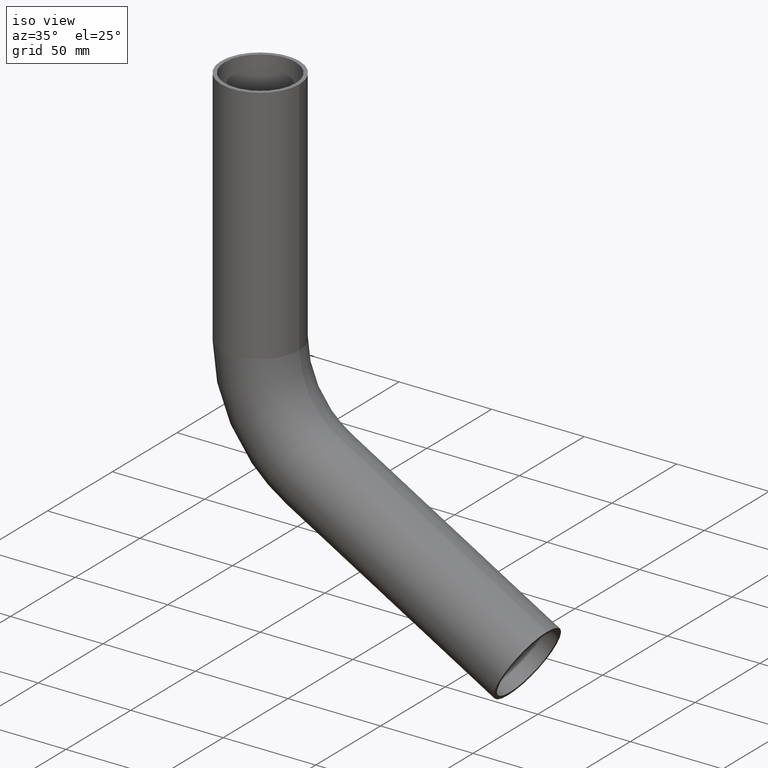
[diagram: clean part render]
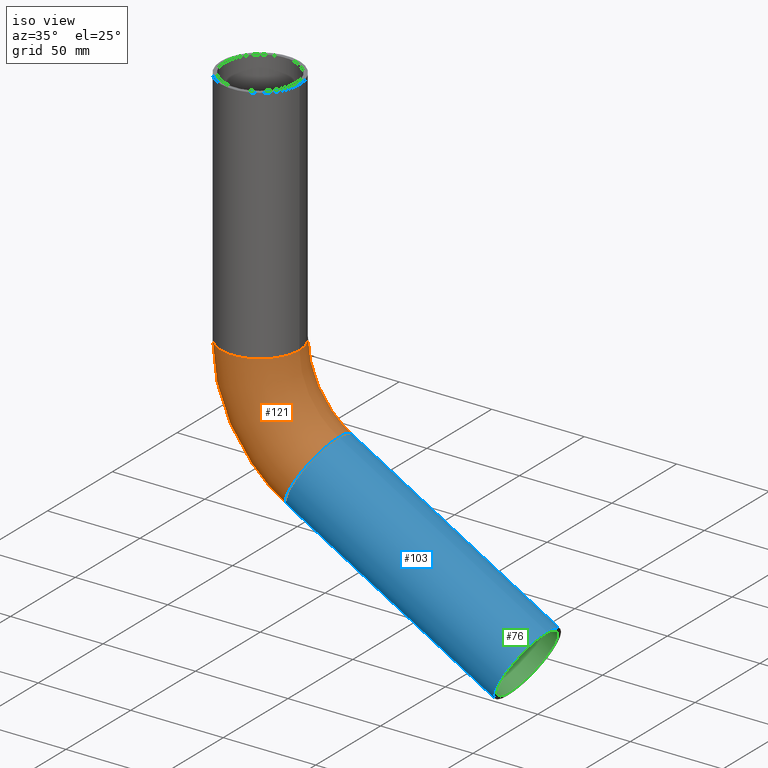
[diagram: same view with three faces highlighted in distinct colors, each labeled with its STEP entity id]
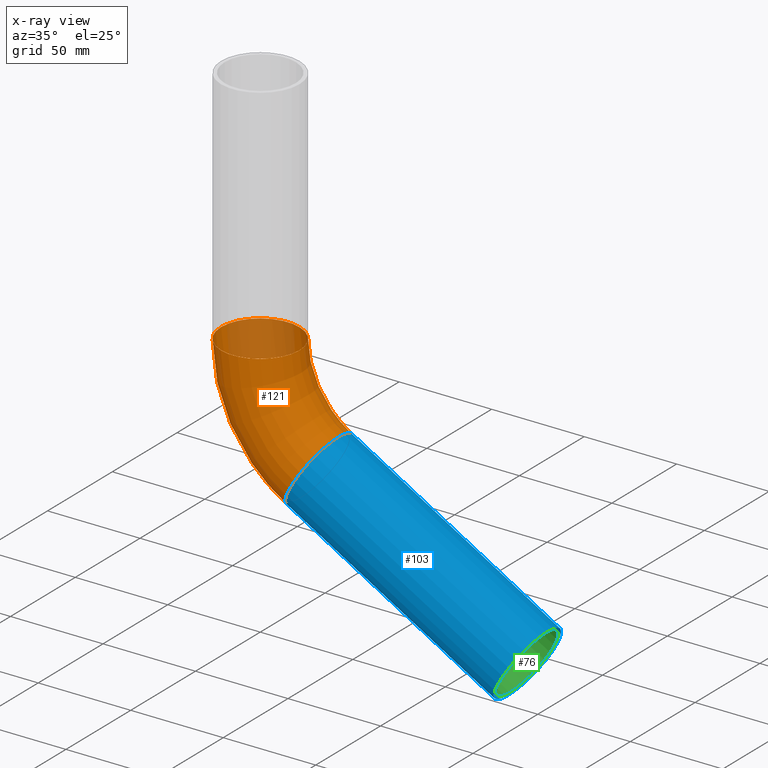
[diagram: x-ray of the same camera — body ghosted, the three highlighted faces saturated]
A machine part, iso view with three faces highlighted in distinct colors.
The next image is the same camera in x-ray (body ghosted, the three faces saturated) — at least one of them is partly hidden behind the body in this view.
Their STEP definitions:

[orange] entity #121 — the highlighted toroidal blend (fillet) surface has major radius 63.6 mm and minor (blend) radius 21.2 mm.
#121=ADVANCED_FACE('',(#193,#195),#197,.T.);
#193=FACE_OUTER_BOUND('',#194,.T.);
#194=EDGE_LOOP('',(#216));
#195=FACE_OUTER_BOUND('',#196,.T.);
#196=EDGE_LOOP('',(#217));
#197=TOROIDAL_SURFACE('',#198,63.5999999999999,21.2);
#198=AXIS2_PLACEMENT_3D('',#199,#200,#201);
#199=CARTESIAN_POINT('',(63.5999999999999,0.,-130.));
#200=DIRECTION('',(0.,-1.,0.));
#201=DIRECTION('',(-1.,0.,0.));
#216=ORIENTED_EDGE('',*,*,#224,.F.);
#217=ORIENTED_EDGE('',*,*,#225,.T.);
#224=EDGE_CURVE('',#238,#238,#239,.T.);
#225=EDGE_CURVE('',#240,#240,#241,.T.);
#238=VERTEX_POINT('',#272);
#239=CIRCLE('',#273,21.2);
#240=VERTEX_POINT('',#277);
#241=CIRCLE('',#278,21.2);
#272=CARTESIAN_POINT('',(42.3999999999999,0.,-166.71947712046));
#273=AXIS2_PLACEMENT_3D('',#274,#275,#276);
#274=CARTESIAN_POINT('',(31.7999999999999,0.,-185.07921568069));
#275=DIRECTION('',(0.866025403784438,-0.,-0.5));
#276=DIRECTION('',(0.5,-1.22464679914735E-016,0.866025403784438));
#277=CARTESIAN_POINT('',(21.2,-2.59625121419239E-015,-130.));
#278=AXIS2_PLACEMENT_3D('',#279,#280,#281);
#279=CARTESIAN_POINT('',(0.,0.,-130.));
#280=DIRECTION('',(0.,0.,-1.));
#281=DIRECTION('',(1.,0.,0.));

[blue] entity #103 — the highlighted cylindrical surface (bore or boss wall) has radius 21.2 mm, axis along (0.866, 0, -0.5).
#103=ADVANCED_FACE('',(#175,#177),#179,.T.);
#175=FACE_OUTER_BOUND('',#176,.T.);
#176=EDGE_LOOP('',(#212));
#177=FACE_OUTER_BOUND('',#178,.T.);
#178=EDGE_LOOP('',(#213));
#179=CYLINDRICAL_SURFACE('',#180,21.2);
#180=AXIS2_PLACEMENT_3D('',#181,#182,#183);
#181=CARTESIAN_POINT('',(31.7999999999999,0.,-185.07921568069));
#182=DIRECTION('',(0.866025403784439,0.,-0.5));
#183=DIRECTION('',(0.5,0.,0.866025403784439));
#212=ORIENTED_EDGE('',*,*,#222,.F.);
#213=ORIENTED_EDGE('',*,*,#224,.T.);
#222=EDGE_CURVE('',#234,#234,#235,.T.);
#224=EDGE_CURVE('',#238,#238,#239,.T.);
#234=VERTEX_POINT('',#262);
#235=CIRCLE('',#263,21.2);
#238=VERTEX_POINT('',#272);
#239=CIRCLE('',#273,21.2);
#262=CARTESIAN_POINT('',(154.983302491977,0.,-231.71947712046));
#263=AXIS2_PLACEMENT_3D('',#264,#265,#266);
#264=CARTESIAN_POINT('',(144.383302491977,0.,-250.07921568069));
#265=DIRECTION('',(0.866025403784438,0.,-0.5));
#266=DIRECTION('',(0.5,0.,0.866025403784438));
#272=CARTESIAN_POINT('',(42.3999999999999,0.,-166.71947712046));
#273=AXIS2_PLACEMENT_3D('',#274,#275,#276);
#274=CARTESIAN_POINT('',(31.7999999999999,0.,-185.07921568069));
#275=DIRECTION('',(0.866025403784438,-0.,-0.5));
#276=DIRECTION('',(0.5,-1.22464679914735E-016,0.866025403784438));

[green] entity #76 — the highlighted cylindrical surface (bore or boss wall) has radius 19.2 mm, axis along (0.866, 0, -0.5).
#76=ADVANCED_FACE('',(#148,#150),#152,.F.);
#148=FACE_OUTER_BOUND('',#149,.T.);
#149=EDGE_LOOP('',(#206));
#150=FACE_OUTER_BOUND('',#151,.T.);
#151=EDGE_LOOP('',(#207));
#152=CYLINDRICAL_SURFACE('',#153,19.2);
#153=AXIS2_PLACEMENT_3D('',#154,#155,#156);
#154=CARTESIAN_POINT('',(31.7999999999999,0.,-185.07921568069));
#155=DIRECTION('',(0.866025403784439,0.,-0.5));
#156=DIRECTION('',(0.5,0.,0.866025403784439));
#206=ORIENTED_EDGE('',*,*,#221,.T.);
#207=ORIENTED_EDGE('',*,*,#220,.F.);
#220=EDGE_CURVE('',#230,#230,#231,.T.);
#221=EDGE_CURVE('',#232,#232,#233,.T.);
#230=VERTEX_POINT('',#252);
#231=CIRCLE('',#253,19.2);
#232=VERTEX_POINT('',#257);
#233=CIRCLE('',#258,19.2000000000001);
#252=CARTESIAN_POINT('',(41.3999999999999,2.35132185436292E-015,-168.451527928029));
#253=AXIS2_PLACEMENT_3D('',#254,#255,#256);
#254=CARTESIAN_POINT('',(31.7999999999999,0.,-185.07921568069));
#255=DIRECTION('',(0.866025403784439,0.,-0.5));
#256=DIRECTION('',(0.5,0.,0.866025403784439));
#257=CARTESIAN_POINT('',(153.983302491977,4.70264370872584E-015,-233.451527928029));
#258=AXIS2_PLACEMENT_3D('',#259,#260,#261);
#259=CARTESIAN_POINT('',(144.383302491977,0.,-250.07921568069));
#260=DIRECTION('',(0.866025403784438,0.,-0.5));
#261=DIRECTION('',(0.5,0.,0.866025403784438));